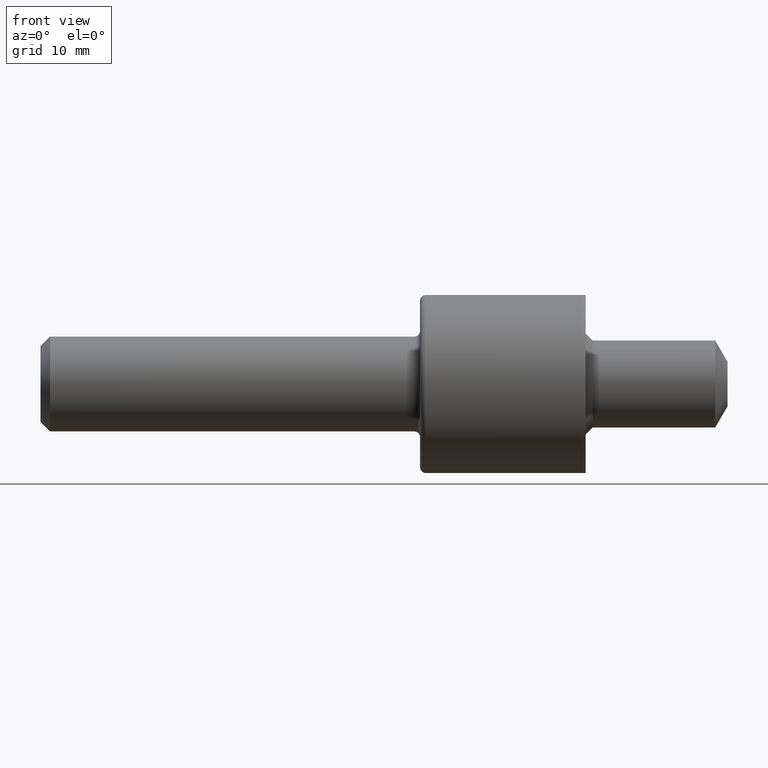
[diagram: clean part render]
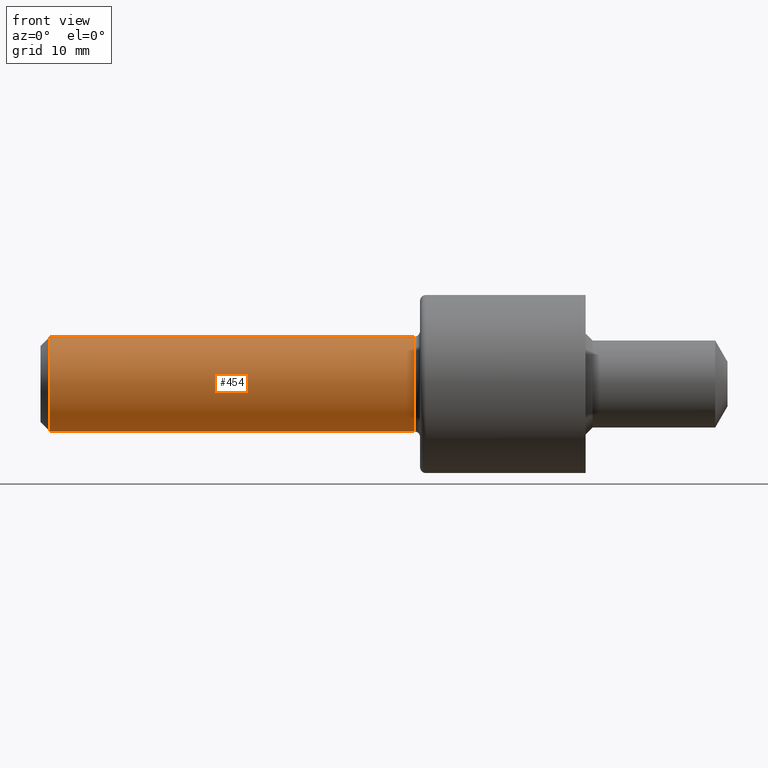
[diagram: same view with one face highlighted and labeled with its STEP entity id]
A machine part, front view. The second image highlights one B-rep face of the part: STEP entity #454.
In plain terms, the highlighted cylindrical surface (partial cylindrical patch) has radius 6.3462 mm, axis along (-1, -0, -0).
Its self-contained STEP definition (entity closure, byte-faithful):
#12 = CARTESIAN_POINT ( 'NONE',  ( 0.0000000000000000000, 0.0000000000000000000, 0.0000000000000000000 ) ) ;
#48 = CARTESIAN_POINT ( 'NONE',  ( 0.05000000000000000278, 0.0000000000000000000, 0.0000000000000000000 ) ) ;
#60 = ORIENTED_EDGE ( 'NONE', *, *, #246, .F. ) ;
#72 = CIRCLE ( 'NONE', #218, 0.2498499999999999888 ) ;
#79 = DIRECTION ( 'NONE',  ( -1.000000000000000000, -0.0000000000000000000, -0.0000000000000000000 ) ) ;
#87 = EDGE_CURVE ( 'NONE', #383, #88, #98, .T. ) ;
#88 = VERTEX_POINT ( 'NONE', #311 ) ;
#98 = CIRCLE ( 'NONE', #211, 0.2498499999999999888 ) ;
#120 = LINE ( 'NONE', #254, #328 ) ;
#158 = EDGE_LOOP ( 'NONE', ( #544, #379, #521, #60 ) ) ;
#159 = FACE_OUTER_BOUND ( 'NONE', #158, .T. ) ;
#172 = CARTESIAN_POINT ( 'NONE',  ( 0.05000000000000000278, 3.059780027669661931E-17, 0.2498499999999999888 ) ) ;
#211 = AXIS2_PLACEMENT_3D ( 'NONE', #232, #230, #489 ) ;
#215 = VERTEX_POINT ( 'NONE', #265 ) ;
#216 = DIRECTION ( 'NONE',  ( 0.0000000000000000000, 0.0000000000000000000, 1.000000000000000000 ) ) ;
#218 = AXIS2_PLACEMENT_3D ( 'NONE', #48, #560, #216 ) ;
#230 = DIRECTION ( 'NONE',  ( -1.000000000000000000, -0.0000000000000000000, -0.0000000000000000000 ) ) ;
#232 = CARTESIAN_POINT ( 'NONE',  ( 1.969999999999999973, 0.0000000000000000000, 0.0000000000000000000 ) ) ;
#236 = DIRECTION ( 'NONE',  ( -1.000000000000000000, -0.0000000000000000000, -0.0000000000000000000 ) ) ;
#246 = EDGE_CURVE ( 'NONE', #215, #562, #72, .T. ) ;
#254 = CARTESIAN_POINT ( 'NONE',  ( 0.0000000000000000000, 0.0000000000000000000, 0.2498499999999999888 ) ) ;
#265 = CARTESIAN_POINT ( 'NONE',  ( 0.05000000000000000278, 0.0000000000000000000, -0.2498499999999999888 ) ) ;
#292 = LINE ( 'NONE', #366, #375 ) ;
#311 = CARTESIAN_POINT ( 'NONE',  ( 1.969999999999999973, 0.0000000000000000000, 0.2498499999999999888 ) ) ;
#324 = DIRECTION ( 'NONE',  ( -1.000000000000000000, -0.0000000000000000000, -0.0000000000000000000 ) ) ;
#328 = VECTOR ( 'NONE', #236, 39.37007874015748143 ) ;
#363 = CYLINDRICAL_SURFACE ( 'NONE', #553, 0.2498499999999999888 ) ;
#365 = EDGE_CURVE ( 'NONE', #88, #562, #120, .T. ) ;
#366 = CARTESIAN_POINT ( 'NONE',  ( 0.0000000000000000000, 3.059780027669661931E-17, -0.2498499999999999888 ) ) ;
#375 = VECTOR ( 'NONE', #79, 39.37007874015748143 ) ;
#379 = ORIENTED_EDGE ( 'NONE', *, *, #87, .T. ) ;
#383 = VERTEX_POINT ( 'NONE', #412 ) ;
#412 = CARTESIAN_POINT ( 'NONE',  ( 1.969999999999999973, 3.059780027669661931E-17, -0.2498499999999999888 ) ) ;
#454 = ADVANCED_FACE ( 'NONE', ( #159 ), #363, .T. ) ;
#455 = DIRECTION ( 'NONE',  ( 0.0000000000000000000, 0.0000000000000000000, 1.000000000000000000 ) ) ;
#470 = EDGE_CURVE ( 'NONE', #383, #215, #292, .T. ) ;
#489 = DIRECTION ( 'NONE',  ( 0.0000000000000000000, 0.0000000000000000000, 1.000000000000000000 ) ) ;
#521 = ORIENTED_EDGE ( 'NONE', *, *, #365, .T. ) ;
#544 = ORIENTED_EDGE ( 'NONE', *, *, #470, .F. ) ;
#553 = AXIS2_PLACEMENT_3D ( 'NONE', #12, #324, #455 ) ;
#560 = DIRECTION ( 'NONE',  ( -1.000000000000000000, -0.0000000000000000000, -0.0000000000000000000 ) ) ;
#562 = VERTEX_POINT ( 'NONE', #172 ) ;